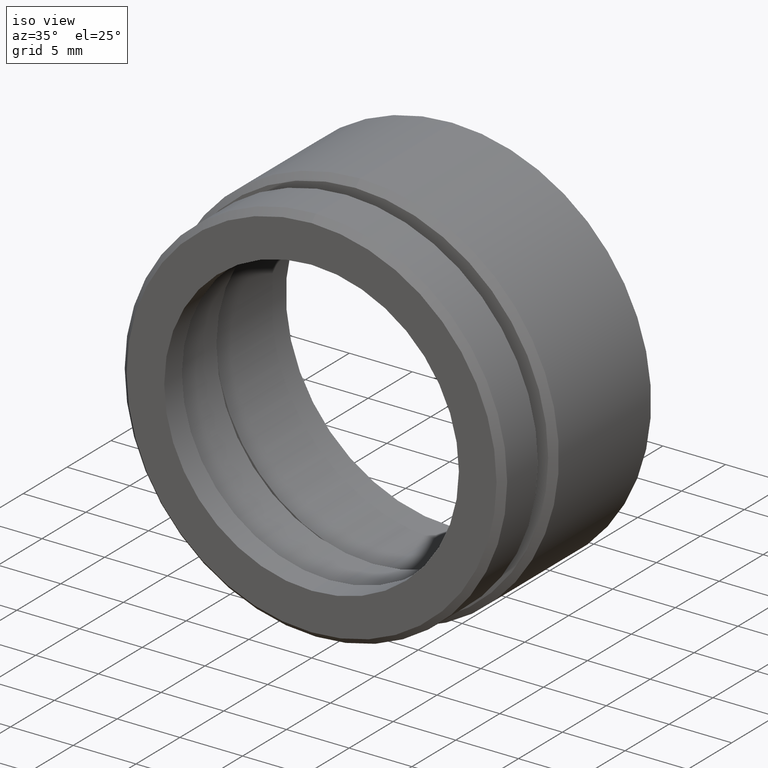
[diagram: clean part render]
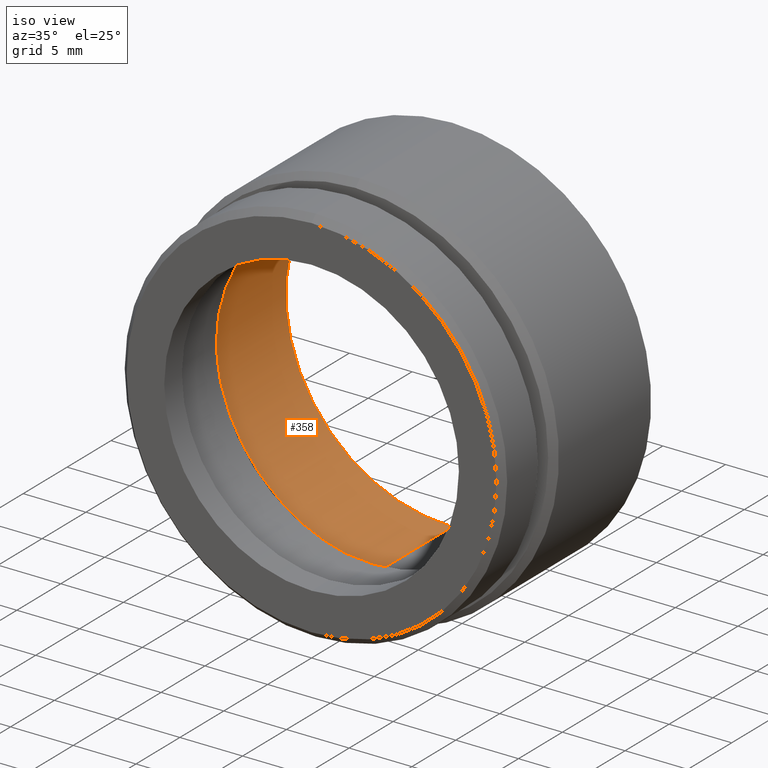
[diagram: same view with one face highlighted and labeled with its STEP entity id]
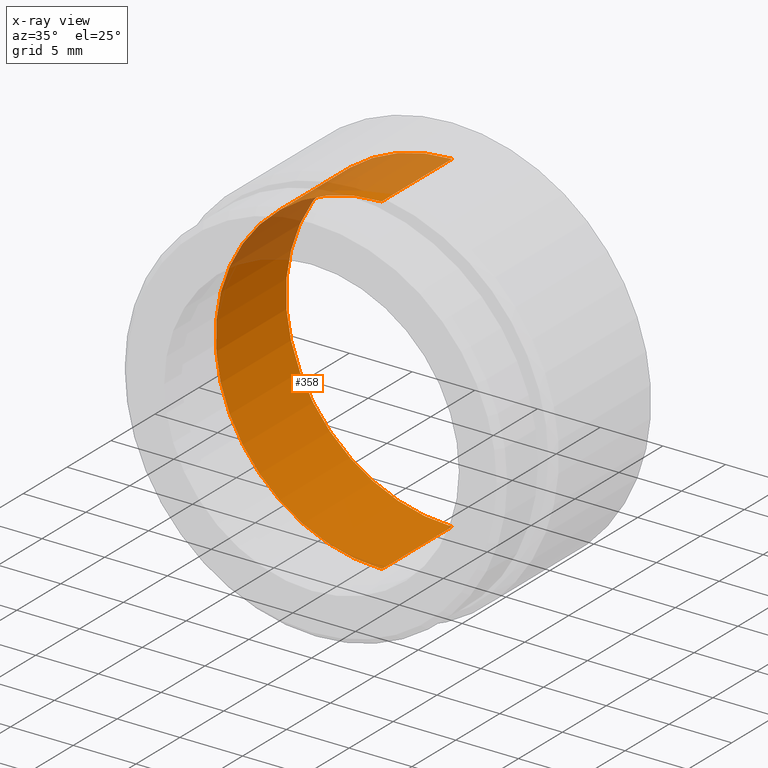
[diagram: x-ray of the same camera — body ghosted, the highlighted face saturated]
A machine part, iso view. The second image highlights one B-rep face of the part: STEP entity #358.
The next image is the same camera in x-ray: the body ghosted, the highlighted face saturated — about 18% of this face is hidden behind the body in this view.
In plain terms, the highlighted cylindrical surface (partial cylindrical patch) has radius 13.25 mm, axis along (-0, -1, -0).
Its self-contained STEP definition (entity closure, byte-faithful):
#63 = VERTEX_POINT ( 'NONE', #809 ) ;
#79 = VECTOR ( 'NONE', #186, 1000.000000000000000 ) ;
#91 = FACE_OUTER_BOUND ( 'NONE', #203, .T. ) ;
#96 = AXIS2_PLACEMENT_3D ( 'NONE', #232, #222, #220 ) ;
#97 = DIRECTION ( 'NONE',  ( 0.0000000000000000000, 0.0000000000000000000, -1.000000000000000000 ) ) ;
#112 = LINE ( 'NONE', #218, #79 ) ;
#125 = CARTESIAN_POINT ( 'NONE',  ( 0.0000000000000000000, 0.0000000000000000000, 0.0000000000000000000 ) ) ;
#145 = CIRCLE ( 'NONE', #96, 13.25000000000000200 ) ;
#148 = DIRECTION ( 'NONE',  ( -0.0000000000000000000, -1.000000000000000000, -0.0000000000000000000 ) ) ;
#186 = DIRECTION ( 'NONE',  ( -0.0000000000000000000, -1.000000000000000000, -0.0000000000000000000 ) ) ;
#203 = EDGE_LOOP ( 'NONE', ( #806, #778, #783, #373 ) ) ;
#218 = CARTESIAN_POINT ( 'NONE',  ( 1.622657008870243300E-015, 0.0000000000000000000, 13.25000000000000200 ) ) ;
#220 = DIRECTION ( 'NONE',  ( 0.0000000000000000000, 0.0000000000000000000, 1.000000000000000000 ) ) ;
#222 = DIRECTION ( 'NONE',  ( -0.0000000000000000000, 1.000000000000000000, -0.0000000000000000000 ) ) ;
#232 = CARTESIAN_POINT ( 'NONE',  ( 0.0000000000000000000, 16.00000000000000000, 0.0000000000000000000 ) ) ;
#262 = DIRECTION ( 'NONE',  ( -0.0000000000000000000, -1.000000000000000000, -0.0000000000000000000 ) ) ;
#272 = EDGE_CURVE ( 'NONE', #63, #814, #145, .T. ) ;
#297 = DIRECTION ( 'NONE',  ( -0.0000000000000000000, -1.000000000000000000, -0.0000000000000000000 ) ) ;
#313 = CYLINDRICAL_SURFACE ( 'NONE', #674, 13.25000000000000200 ) ;
#326 = EDGE_CURVE ( 'NONE', #814, #659, #112, .T. ) ;
#358 = ADVANCED_FACE ( 'NONE', ( #91 ), #313, .F. ) ;
#373 = ORIENTED_EDGE ( 'NONE', *, *, #700, .F. ) ;
#391 = DIRECTION ( 'NONE',  ( 0.0000000000000000000, 0.0000000000000000000, -1.000000000000000000 ) ) ;
#398 = CARTESIAN_POINT ( 'NONE',  ( 1.622657008870243300E-015, 16.00000000000000000, 13.25000000000000200 ) ) ;
#437 = VERTEX_POINT ( 'NONE', #711 ) ;
#494 = CARTESIAN_POINT ( 'NONE',  ( 0.0000000000000000000, 7.999999999999998200, 0.0000000000000000000 ) ) ;
#512 = LINE ( 'NONE', #690, #647 ) ;
#647 = VECTOR ( 'NONE', #262, 1000.000000000000000 ) ;
#659 = VERTEX_POINT ( 'NONE', #683 ) ;
#674 = AXIS2_PLACEMENT_3D ( 'NONE', #125, #148, #97 ) ;
#683 = CARTESIAN_POINT ( 'NONE',  ( 1.622657008870243300E-015, 7.999999999999998200, 13.25000000000000200 ) ) ;
#690 = CARTESIAN_POINT ( 'NONE',  ( 0.0000000000000000000, 0.0000000000000000000, -13.25000000000000200 ) ) ;
#700 = EDGE_CURVE ( 'NONE', #63, #437, #512, .T. ) ;
#711 = CARTESIAN_POINT ( 'NONE',  ( 0.0000000000000000000, 7.999999999999998200, -13.25000000000000200 ) ) ;
#723 = CIRCLE ( 'NONE', #843, 13.25000000000000200 ) ;
#778 = ORIENTED_EDGE ( 'NONE', *, *, #326, .T. ) ;
#783 = ORIENTED_EDGE ( 'NONE', *, *, #789, .T. ) ;
#789 = EDGE_CURVE ( 'NONE', #659, #437, #723, .T. ) ;
#806 = ORIENTED_EDGE ( 'NONE', *, *, #272, .T. ) ;
#809 = CARTESIAN_POINT ( 'NONE',  ( 0.0000000000000000000, 16.00000000000000000, -13.25000000000000200 ) ) ;
#814 = VERTEX_POINT ( 'NONE', #398 ) ;
#843 = AXIS2_PLACEMENT_3D ( 'NONE', #494, #297, #391 ) ;